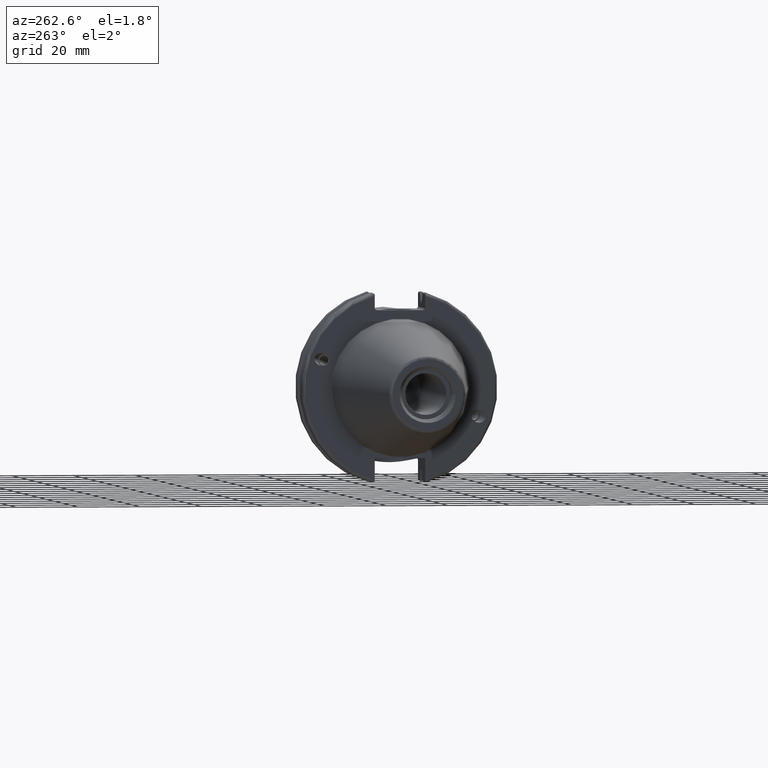
[diagram: clean part render]
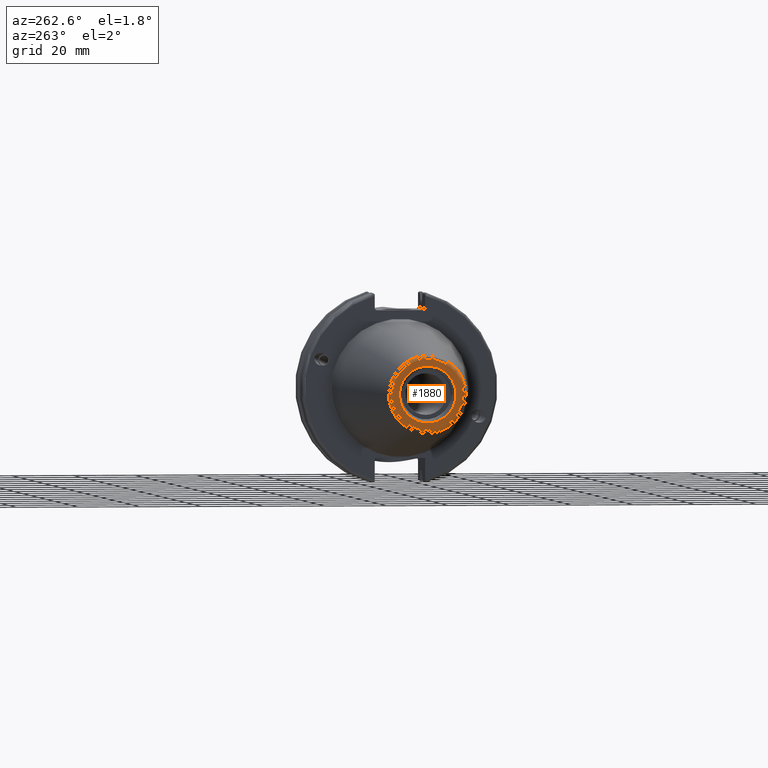
[diagram: same view with one face highlighted and labeled with its STEP entity id]
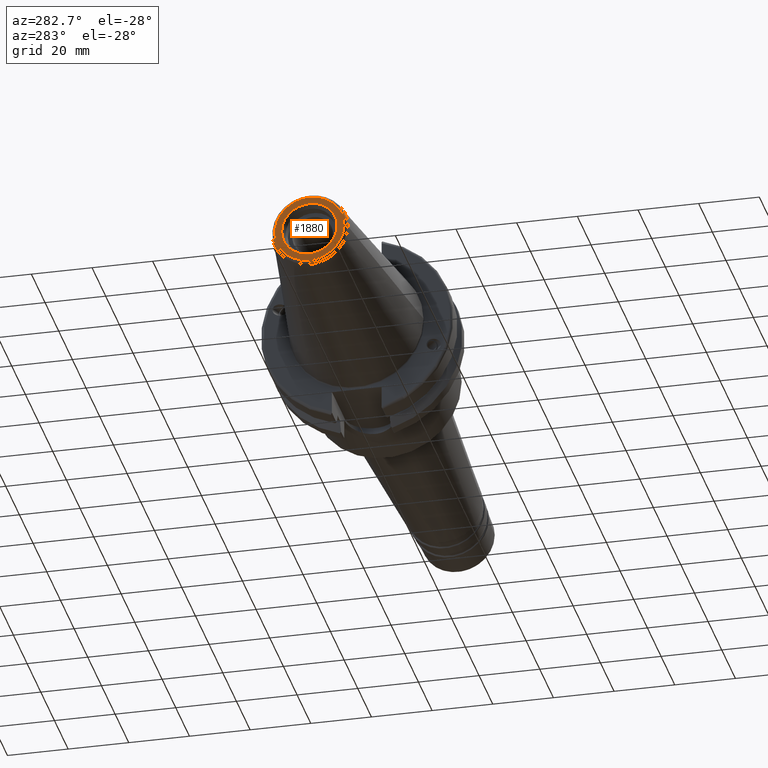
[diagram: same view with one face highlighted and labeled with its STEP entity id]
A machine part, auxiliary view. The second image highlights one B-rep face of the part: STEP entity #1880.
A second angle (auxiliary view) of the same face is appended — the face is thin or edge-on in the first view.
In plain terms, the highlighted planar face has unit normal (-1, 0, 0).
Its self-contained STEP definition (entity closure, byte-faithful):
#70=PLANE('',#2136);
#115=FACE_BOUND('',#378,.T.);
#260=FACE_OUTER_BOUND('',#377,.T.);
#377=EDGE_LOOP('',(#1654));
#378=EDGE_LOOP('',(#1655));
#709=CIRCLE('',#2135,11.4071305970304);
#710=CIRCLE('',#2137,9.15);
#904=VERTEX_POINT('',#3663);
#905=VERTEX_POINT('',#3667);
#1172=EDGE_CURVE('',#904,#904,#709,.T.);
#1173=EDGE_CURVE('',#905,#905,#710,.T.);
#1654=ORIENTED_EDGE('',*,*,#1172,.F.);
#1655=ORIENTED_EDGE('',*,*,#1173,.T.);
#1880=ADVANCED_FACE('',(#260,#115),#70,.T.);
#2135=AXIS2_PLACEMENT_3D('',#3665,#2668,#2669);
#2136=AXIS2_PLACEMENT_3D('',#3666,#2670,#2671);
#2137=AXIS2_PLACEMENT_3D('',#3668,#2672,#2673);
#2668=DIRECTION('center_axis',(1.,0.,0.));
#2669=DIRECTION('ref_axis',(0.,-1.,1.83697019872103E-16));
#2670=DIRECTION('center_axis',(-1.,0.,0.));
#2671=DIRECTION('ref_axis',(0.,0.,1.));
#2672=DIRECTION('center_axis',(1.,0.,0.));
#2673=DIRECTION('ref_axis',(0.,0.,-1.));
#3663=CARTESIAN_POINT('',(-68.25,-1.39697059731091E-15,11.4071305970304));
#3665=CARTESIAN_POINT('Origin',(-68.25,0.,0.));
#3666=CARTESIAN_POINT('Origin',(-68.25,12.271875,0.));
#3667=CARTESIAN_POINT('',(-68.25,-9.15,-1.12055182121983E-15));
#3668=CARTESIAN_POINT('Origin',(-68.25,0.,0.));